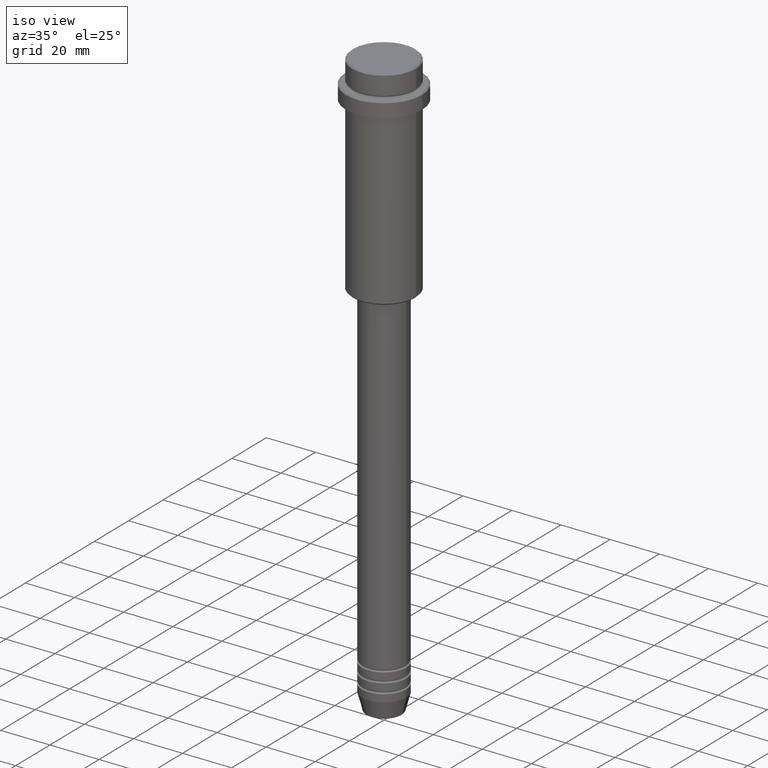
[diagram: clean part render]
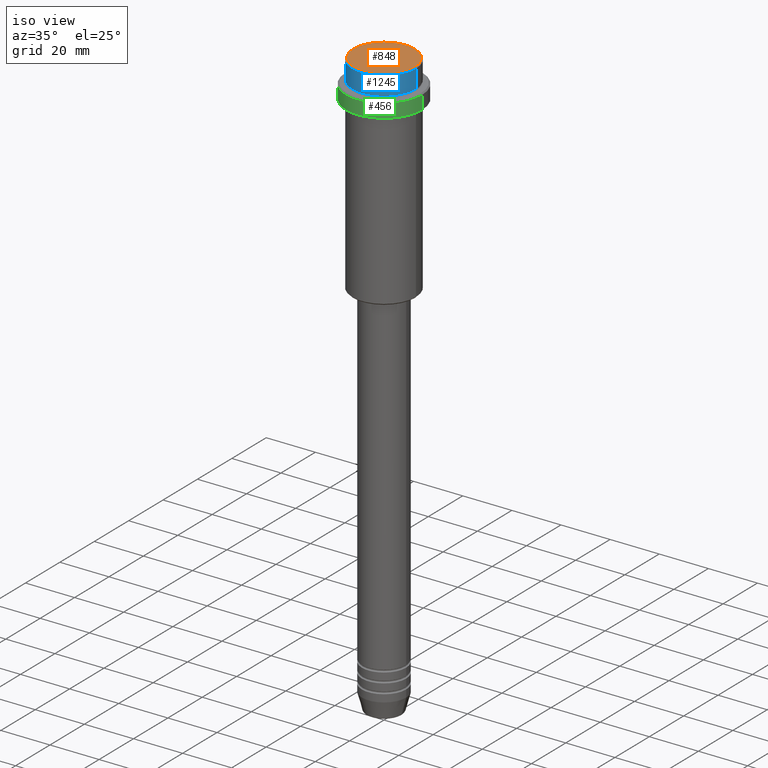
[diagram: same view with three faces highlighted in distinct colors, each labeled with its STEP entity id]
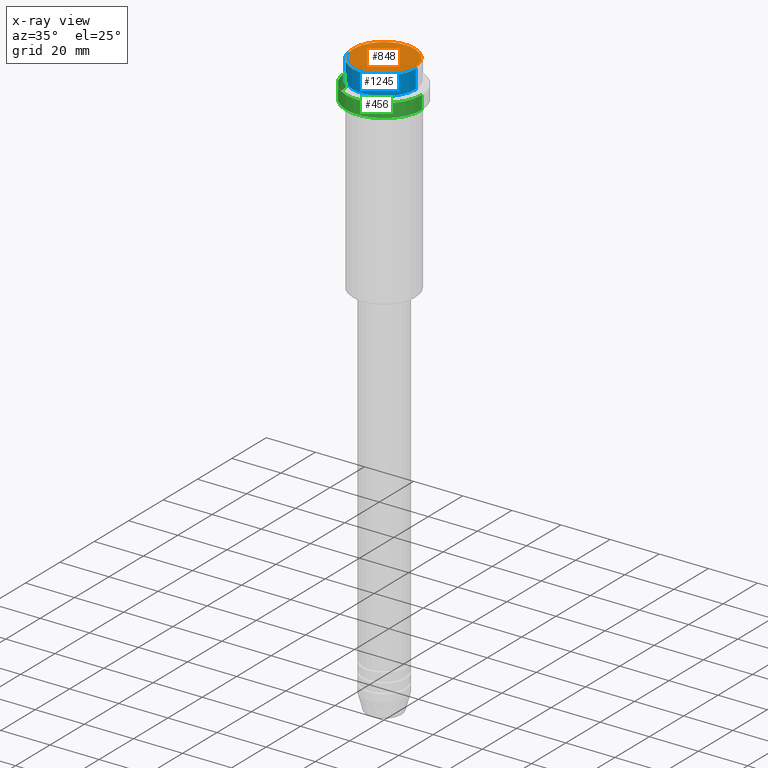
[diagram: x-ray of the same camera — body ghosted, the three highlighted faces saturated]
A machine part, iso view with three faces highlighted in distinct colors.
The next image is the same camera in x-ray (body ghosted, the three faces saturated) — at least one of them is partly hidden behind the body in this view.
Their STEP definitions:

[orange] entity #848 — the highlighted planar face has unit normal (0, -0, 1).
#28 = EDGE_CURVE ( 'NONE', #739, #1257, #1087, .T. ) ;
#131 = ORIENTED_EDGE ( 'NONE', *, *, #28, .T. ) ;
#175 = CARTESIAN_POINT ( 'NONE',  ( -12.50000000000001243, 0.000000000000000000, 0.000000000000000000 ) ) ;
#405 = CARTESIAN_POINT ( 'NONE',  ( 0.000000000000000000, 0.000000000000000000, 0.000000000000000000 ) ) ;
#522 = DIRECTION ( 'NONE',  ( -0.000000000000000000, -0.000000000000000000, 1.000000000000000000 ) ) ;
#534 = DIRECTION ( 'NONE',  ( 1.000000000000000000, 0.000000000000000000, 0.000000000000000000 ) ) ;
#620 = DIRECTION ( 'NONE',  ( 1.000000000000000000, 0.000000000000000000, 0.000000000000000000 ) ) ;
#659 = DIRECTION ( 'NONE',  ( -0.000000000000000000, -0.000000000000000000, 1.000000000000000000 ) ) ;
#701 = AXIS2_PLACEMENT_3D ( 'NONE', #405, #1386, #1079 ) ;
#722 = AXIS2_PLACEMENT_3D ( 'NONE', #1375, #522, #620 ) ;
#730 = EDGE_LOOP ( 'NONE', ( #735, #131 ) ) ;
#735 = ORIENTED_EDGE ( 'NONE', *, *, #845, .T. ) ;
#739 = VERTEX_POINT ( 'NONE', #1034 ) ;
#845 = EDGE_CURVE ( 'NONE', #1257, #739, #1322, .T. ) ;
#848 = ADVANCED_FACE ( 'NONE', ( #951 ), #851, .T. ) ;
#851 = PLANE ( 'NONE',  #701 ) ;
#951 = FACE_OUTER_BOUND ( 'NONE', #730, .T. ) ;
#1034 = CARTESIAN_POINT ( 'NONE',  ( 12.50000000000001243, 1.561424668912876097E-15, 0.000000000000000000 ) ) ;
#1041 = AXIS2_PLACEMENT_3D ( 'NONE', #1199, #659, #534 ) ;
#1079 = DIRECTION ( 'NONE',  ( 1.000000000000000000, 0.000000000000000000, 0.000000000000000000 ) ) ;
#1087 = CIRCLE ( 'NONE', #1041, 12.50000000000001243 ) ;
#1199 = CARTESIAN_POINT ( 'NONE',  ( 0.000000000000000000, 0.000000000000000000, 0.000000000000000000 ) ) ;
#1257 = VERTEX_POINT ( 'NONE', #175 ) ;
#1322 = CIRCLE ( 'NONE', #722, 12.50000000000001243 ) ;
#1375 = CARTESIAN_POINT ( 'NONE',  ( 0.000000000000000000, 0.000000000000000000, 0.000000000000000000 ) ) ;
#1386 = DIRECTION ( 'NONE',  ( 0.000000000000000000, -0.000000000000000000, 1.000000000000000000 ) ) ;

[blue] entity #1245 — the highlighted cylindrical surface (partial cylindrical patch) has radius 13 mm, axis along (-0, -0, 1).
#5 = EDGE_CURVE ( 'NONE', #963, #1130, #949, .T. ) ;
#9 = VERTEX_POINT ( 'NONE', #765 ) ;
#33 = DIRECTION ( 'NONE',  ( 1.000000000000000000, 0.000000000000000000, 0.000000000000000000 ) ) ;
#93 = EDGE_CURVE ( 'NONE', #9, #1130, #231, .T. ) ;
#104 = DIRECTION ( 'NONE',  ( 0.000000000000000000, 0.000000000000000000, -1.000000000000000000 ) ) ;
#146 = ORIENTED_EDGE ( 'NONE', *, *, #766, .T. ) ;
#168 = AXIS2_PLACEMENT_3D ( 'NONE', #1007, #104, #642 ) ;
#231 = LINE ( 'NONE', #525, #1404 ) ;
#263 = CIRCLE ( 'NONE', #1065, 12.99999999999999822 ) ;
#450 = EDGE_CURVE ( 'NONE', #9, #1263, #263, .T. ) ;
#463 = CARTESIAN_POINT ( 'NONE',  ( 0.000000000000000000, 0.000000000000000000, 0.000000000000000000 ) ) ;
#517 = VECTOR ( 'NONE', #669, 1000.000000000000000 ) ;
#525 = CARTESIAN_POINT ( 'NONE',  ( -12.99999999999999822, 1.592040838891558898E-15, 0.000000000000000000 ) ) ;
#617 = CARTESIAN_POINT ( 'NONE',  ( 12.99999999999999822, 0.000000000000000000, -7.999999999999998224 ) ) ;
#642 = DIRECTION ( 'NONE',  ( 1.000000000000000000, 0.000000000000000000, 0.000000000000000000 ) ) ;
#669 = DIRECTION ( 'NONE',  ( -0.000000000000000000, -0.000000000000000000, 1.000000000000000000 ) ) ;
#682 = AXIS2_PLACEMENT_3D ( 'NONE', #463, #1143, #33 ) ;
#712 = ORIENTED_EDGE ( 'NONE', *, *, #5, .T. ) ;
#765 = CARTESIAN_POINT ( 'NONE',  ( -12.99999999999999822, 1.592040838891558898E-15, -7.999999999999998224 ) ) ;
#766 = EDGE_CURVE ( 'NONE', #1263, #963, #1323, .T. ) ;
#829 = EDGE_LOOP ( 'NONE', ( #1104, #1180, #146, #712 ) ) ;
#913 = CARTESIAN_POINT ( 'NONE',  ( -12.99999999999999822, 1.592040838891558898E-15, -0.5000000000000038858 ) ) ;
#949 = CIRCLE ( 'NONE', #168, 12.99999999999999822 ) ;
#963 = VERTEX_POINT ( 'NONE', #1327 ) ;
#972 = DIRECTION ( 'NONE',  ( -0.000000000000000000, -0.000000000000000000, 1.000000000000000000 ) ) ;
#1007 = CARTESIAN_POINT ( 'NONE',  ( 0.000000000000000000, 0.000000000000000000, -0.5000000000000038858 ) ) ;
#1061 = DIRECTION ( 'NONE',  ( 1.000000000000000000, 0.000000000000000000, 0.000000000000000000 ) ) ;
#1065 = AXIS2_PLACEMENT_3D ( 'NONE', #1282, #1389, #1061 ) ;
#1104 = ORIENTED_EDGE ( 'NONE', *, *, #93, .F. ) ;
#1130 = VERTEX_POINT ( 'NONE', #913 ) ;
#1143 = DIRECTION ( 'NONE',  ( -0.000000000000000000, -0.000000000000000000, 1.000000000000000000 ) ) ;
#1180 = ORIENTED_EDGE ( 'NONE', *, *, #450, .T. ) ;
#1214 = CARTESIAN_POINT ( 'NONE',  ( 12.99999999999999822, 0.000000000000000000, 0.000000000000000000 ) ) ;
#1242 = FACE_OUTER_BOUND ( 'NONE', #829, .T. ) ;
#1245 = ADVANCED_FACE ( 'NONE', ( #1242 ), #1355, .T. ) ;
#1263 = VERTEX_POINT ( 'NONE', #617 ) ;
#1282 = CARTESIAN_POINT ( 'NONE',  ( 0.000000000000000000, 0.000000000000000000, -7.999999999999998224 ) ) ;
#1323 = LINE ( 'NONE', #1214, #517 ) ;
#1327 = CARTESIAN_POINT ( 'NONE',  ( 12.99999999999999822, 0.000000000000000000, -0.5000000000000038858 ) ) ;
#1355 = CYLINDRICAL_SURFACE ( 'NONE', #682, 12.99999999999999822 ) ;
#1389 = DIRECTION ( 'NONE',  ( -0.000000000000000000, -0.000000000000000000, 1.000000000000000000 ) ) ;
#1404 = VECTOR ( 'NONE', #972, 1000.000000000000000 ) ;

[green] entity #456 — the highlighted cylindrical surface (partial cylindrical patch) has radius 15.5 mm, axis along (-0, -0, 1).
#7 = CARTESIAN_POINT ( 'NONE',  ( 0.000000000000000000, 0.000000000000000000, -15.00000000000000178 ) ) ;
#45 = LINE ( 'NONE', #359, #629 ) ;
#46 = EDGE_CURVE ( 'NONE', #627, #1294, #1112, .T. ) ;
#160 = DIRECTION ( 'NONE',  ( 1.000000000000000000, 0.000000000000000000, 0.000000000000000000 ) ) ;
#163 = ORIENTED_EDGE ( 'NONE', *, *, #1132, .T. ) ;
#276 = DIRECTION ( 'NONE',  ( 1.000000000000000000, 0.000000000000000000, 0.000000000000000000 ) ) ;
#278 = EDGE_LOOP ( 'NONE', ( #846, #783, #409, #163 ) ) ;
#289 = EDGE_CURVE ( 'NONE', #1294, #1080, #45, .T. ) ;
#347 = CARTESIAN_POINT ( 'NONE',  ( 15.50000000000000000, 0.000000000000000000, -9.500000000000040856 ) ) ;
#359 = CARTESIAN_POINT ( 'NONE',  ( 15.50000000000000000, 0.000000000000000000, 0.000000000000000000 ) ) ;
#366 = DIRECTION ( 'NONE',  ( -0.000000000000000000, -0.000000000000000000, 1.000000000000000000 ) ) ;
#404 = VERTEX_POINT ( 'NONE', #407 ) ;
#407 = CARTESIAN_POINT ( 'NONE',  ( -15.50000000000000000, 1.898202538678397557E-15, -9.500000000000040856 ) ) ;
#409 = ORIENTED_EDGE ( 'NONE', *, *, #289, .T. ) ;
#424 = CIRCLE ( 'NONE', #723, 15.50000000000000000 ) ;
#434 = DIRECTION ( 'NONE',  ( 1.000000000000000000, 0.000000000000000000, 0.000000000000000000 ) ) ;
#456 = ADVANCED_FACE ( 'NONE', ( #509 ), #484, .T. ) ;
#475 = DIRECTION ( 'NONE',  ( 0.000000000000000000, 0.000000000000000000, -1.000000000000000000 ) ) ;
#477 = CARTESIAN_POINT ( 'NONE',  ( -15.50000000000000000, 1.898202538678397557E-15, 0.000000000000000000 ) ) ;
#484 = CYLINDRICAL_SURFACE ( 'NONE', #745, 15.50000000000000000 ) ;
#509 = FACE_OUTER_BOUND ( 'NONE', #278, .T. ) ;
#627 = VERTEX_POINT ( 'NONE', #823 ) ;
#629 = VECTOR ( 'NONE', #805, 1000.000000000000000 ) ;
#723 = AXIS2_PLACEMENT_3D ( 'NONE', #1032, #475, #160 ) ;
#736 = EDGE_CURVE ( 'NONE', #627, #404, #1131, .T. ) ;
#745 = AXIS2_PLACEMENT_3D ( 'NONE', #946, #1255, #276 ) ;
#783 = ORIENTED_EDGE ( 'NONE', *, *, #46, .T. ) ;
#805 = DIRECTION ( 'NONE',  ( -0.000000000000000000, -0.000000000000000000, 1.000000000000000000 ) ) ;
#823 = CARTESIAN_POINT ( 'NONE',  ( -15.50000000000000000, 1.898202538678397557E-15, -15.00000000000000178 ) ) ;
#846 = ORIENTED_EDGE ( 'NONE', *, *, #736, .F. ) ;
#946 = CARTESIAN_POINT ( 'NONE',  ( 0.000000000000000000, 0.000000000000000000, 0.000000000000000000 ) ) ;
#955 = VECTOR ( 'NONE', #366, 1000.000000000000000 ) ;
#985 = DIRECTION ( 'NONE',  ( -0.000000000000000000, -0.000000000000000000, 1.000000000000000000 ) ) ;
#1032 = CARTESIAN_POINT ( 'NONE',  ( 0.000000000000000000, 0.000000000000000000, -9.500000000000040856 ) ) ;
#1080 = VERTEX_POINT ( 'NONE', #347 ) ;
#1112 = CIRCLE ( 'NONE', #1246, 15.50000000000000000 ) ;
#1131 = LINE ( 'NONE', #477, #955 ) ;
#1132 = EDGE_CURVE ( 'NONE', #1080, #404, #424, .T. ) ;
#1246 = AXIS2_PLACEMENT_3D ( 'NONE', #7, #985, #434 ) ;
#1255 = DIRECTION ( 'NONE',  ( -0.000000000000000000, -0.000000000000000000, 1.000000000000000000 ) ) ;
#1290 = CARTESIAN_POINT ( 'NONE',  ( 15.50000000000000000, 0.000000000000000000, -15.00000000000000178 ) ) ;
#1294 = VERTEX_POINT ( 'NONE', #1290 ) ;